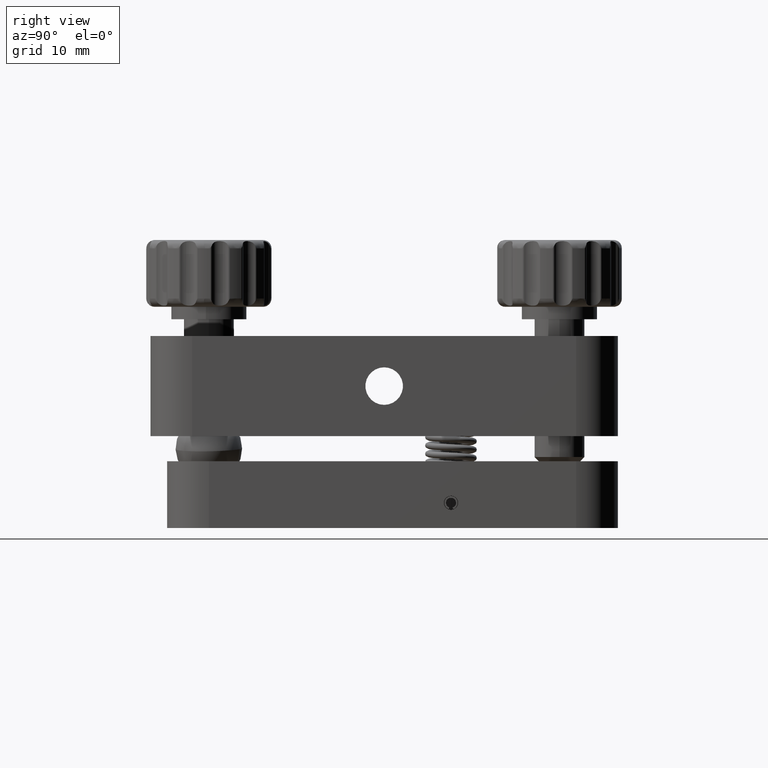
[diagram: clean part render]
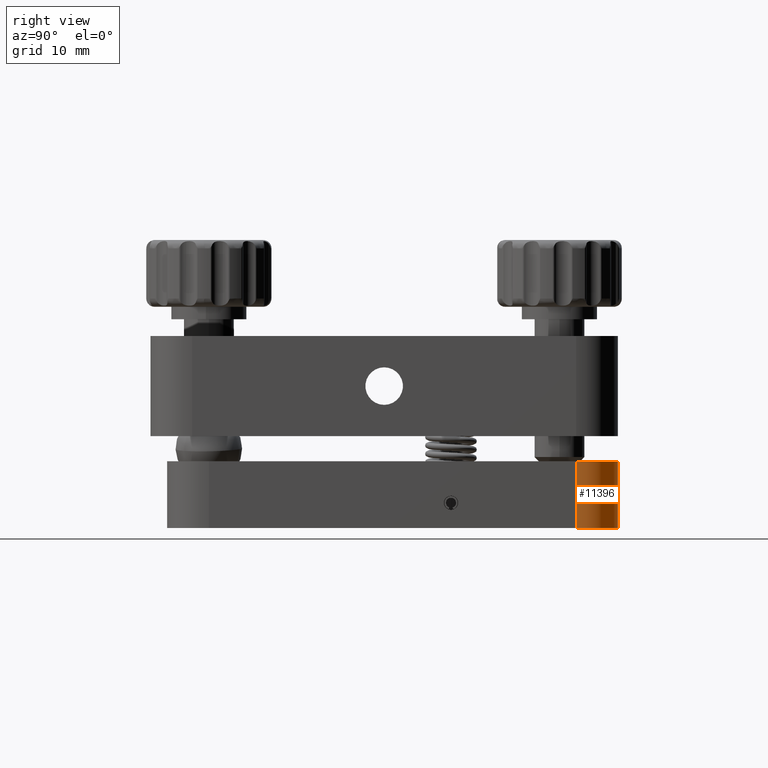
[diagram: same view with one face highlighted and labeled with its STEP entity id]
A machine part, right view. The second image highlights one B-rep face of the part: STEP entity #11396.
In plain terms, the highlighted cylindrical surface (partial cylindrical patch) has radius 5 mm, axis along (0, 0, 1).
Its self-contained STEP definition (entity closure, byte-faithful):
#239 = EDGE_CURVE ( 'NONE', #16019, #8472, #16881, .T. ) ;
#2201 = CARTESIAN_POINT ( 'NONE',  ( 20.99999999999998900, 22.99999999999999300, -16.99999999999999600 ) ) ;
#2294 = ORIENTED_EDGE ( 'NONE', *, *, #12650, .F. ) ;
#3016 = DIRECTION ( 'NONE',  ( 0.0000000000000000000, 0.0000000000000000000, 1.000000000000000000 ) ) ;
#3463 = EDGE_LOOP ( 'NONE', ( #2294, #20022, #18077, #3488 ) ) ;
#3488 = ORIENTED_EDGE ( 'NONE', *, *, #12455, .T. ) ;
#3912 = DIRECTION ( 'NONE',  ( 0.0000000000000000000, 0.0000000000000000000, 1.000000000000000000 ) ) ;
#4093 = CARTESIAN_POINT ( 'NONE',  ( 25.99999999999998900, 22.99999999999999300, -8.999999999999998200 ) ) ;
#5019 = CARTESIAN_POINT ( 'NONE',  ( 20.99999999999998900, 27.99999999999998900, -8.999999999999998200 ) ) ;
#5499 = CARTESIAN_POINT ( 'NONE',  ( 20.99999999999998900, 27.99999999999998900, -16.99999999999999600 ) ) ;
#5514 = VERTEX_POINT ( 'NONE', #4093 ) ;
#6097 = LINE ( 'NONE', #9630, #11533 ) ;
#6167 = AXIS2_PLACEMENT_3D ( 'NONE', #18573, #20118, #10789 ) ;
#7506 = FACE_OUTER_BOUND ( 'NONE', #3463, .T. ) ;
#8413 = AXIS2_PLACEMENT_3D ( 'NONE', #2201, #3016, #18633 ) ;
#8472 = VERTEX_POINT ( 'NONE', #5499 ) ;
#9225 = CARTESIAN_POINT ( 'NONE',  ( 20.99999999999998900, 22.99999999999999300, -16.99999999999999600 ) ) ;
#9630 = CARTESIAN_POINT ( 'NONE',  ( 25.99999999999998900, 22.99999999999999300, -16.99999999999999600 ) ) ;
#9922 = AXIS2_PLACEMENT_3D ( 'NONE', #9225, #20246, #12387 ) ;
#9944 = VECTOR ( 'NONE', #3912, 1000.000000000000000 ) ;
#10789 = DIRECTION ( 'NONE',  ( 0.0000000000000000000, 1.000000000000000000, 0.0000000000000000000 ) ) ;
#11396 = ADVANCED_FACE ( 'NONE', ( #7506 ), #17357, .T. ) ;
#11505 = CARTESIAN_POINT ( 'NONE',  ( 20.99999999999998900, 27.99999999999998900, -16.99999999999999600 ) ) ;
#11533 = VECTOR ( 'NONE', #17686, 1000.000000000000000 ) ;
#12387 = DIRECTION ( 'NONE',  ( 0.0000000000000000000, 1.000000000000000000, 0.0000000000000000000 ) ) ;
#12455 = EDGE_CURVE ( 'NONE', #8472, #14088, #19295, .T. ) ;
#12650 = EDGE_CURVE ( 'NONE', #5514, #14088, #14869, .T. ) ;
#14088 = VERTEX_POINT ( 'NONE', #5019 ) ;
#14869 = CIRCLE ( 'NONE', #6167, 4.999999999999997300 ) ;
#16019 = VERTEX_POINT ( 'NONE', #19705 ) ;
#16881 = CIRCLE ( 'NONE', #9922, 4.999999999999997300 ) ;
#17357 = CYLINDRICAL_SURFACE ( 'NONE', #8413, 4.999999999999997300 ) ;
#17686 = DIRECTION ( 'NONE',  ( 0.0000000000000000000, 0.0000000000000000000, 1.000000000000000000 ) ) ;
#17718 = EDGE_CURVE ( 'NONE', #16019, #5514, #6097, .T. ) ;
#18077 = ORIENTED_EDGE ( 'NONE', *, *, #239, .T. ) ;
#18573 = CARTESIAN_POINT ( 'NONE',  ( 20.99999999999998900, 22.99999999999999300, -8.999999999999998200 ) ) ;
#18633 = DIRECTION ( 'NONE',  ( 0.0000000000000000000, -1.000000000000000000, 0.0000000000000000000 ) ) ;
#19295 = LINE ( 'NONE', #11505, #9944 ) ;
#19705 = CARTESIAN_POINT ( 'NONE',  ( 25.99999999999998900, 22.99999999999999300, -16.99999999999999600 ) ) ;
#20022 = ORIENTED_EDGE ( 'NONE', *, *, #17718, .F. ) ;
#20118 = DIRECTION ( 'NONE',  ( 0.0000000000000000000, 0.0000000000000000000, 1.000000000000000000 ) ) ;
#20246 = DIRECTION ( 'NONE',  ( 0.0000000000000000000, 0.0000000000000000000, 1.000000000000000000 ) ) ;